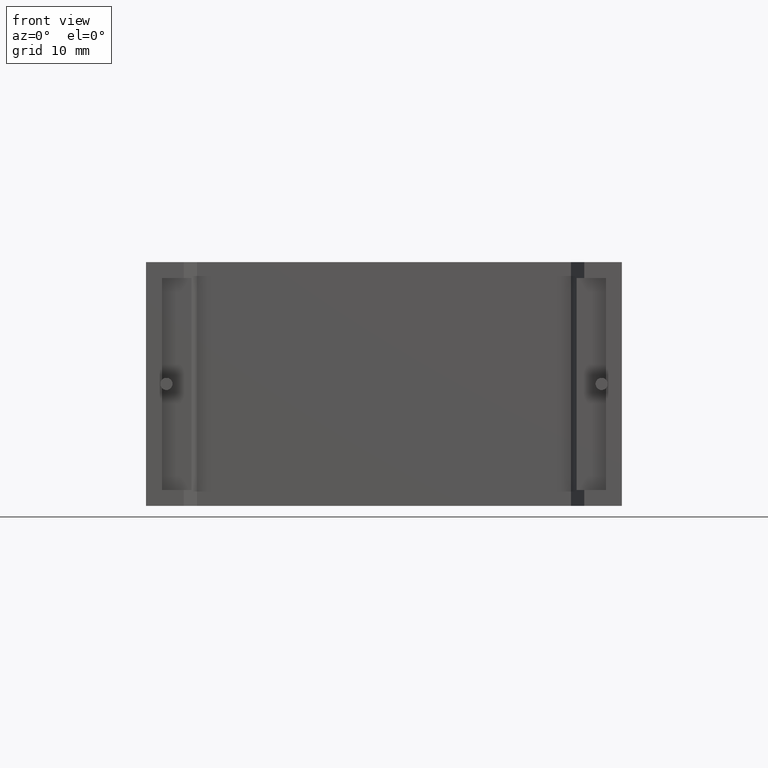
[diagram: clean part render]
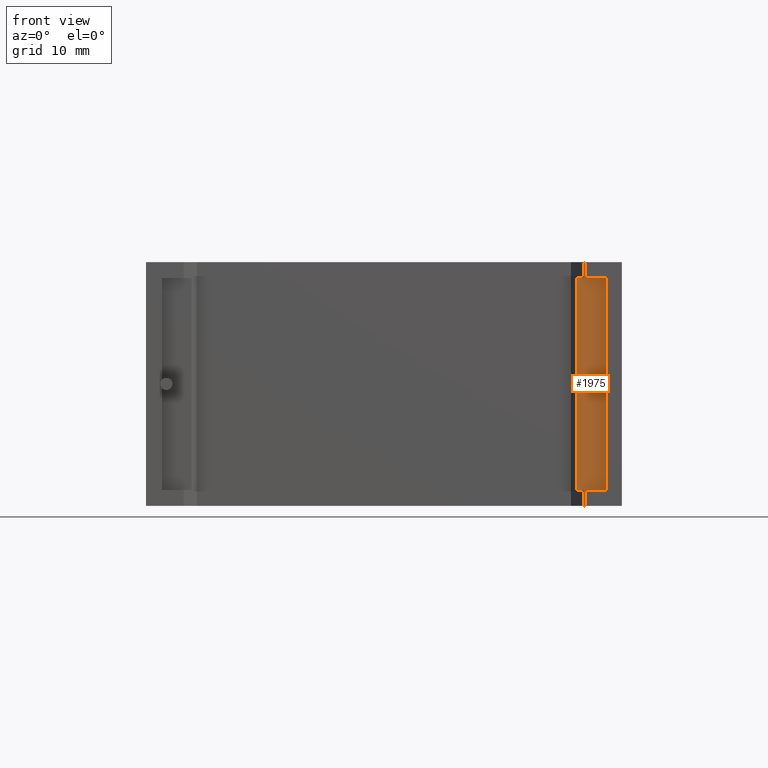
[diagram: same view with one face highlighted and labeled with its STEP entity id]
A machine part, front view. The second image highlights one B-rep face of the part: STEP entity #1975.
In plain terms, the highlighted planar face has unit normal (0, -1, 0).
Its self-contained STEP definition (entity closure, byte-faithful):
#18 = CARTESIAN_POINT ( 'NONE',  ( 39.63333347000000373, 0.7500000000000000000, 1.366666530000000046 ) ) ;
#99 = DIRECTION ( 'NONE',  ( 0.000000000000000000, 0.000000000000000000, -1.000000000000000000 ) ) ;
#122 = LINE ( 'NONE', #158, #2795 ) ;
#158 = CARTESIAN_POINT ( 'NONE',  ( 37.09826634814995572, 0.7500000000000000000, 0.000000000000000000 ) ) ;
#243 = DIRECTION ( 'NONE',  ( 0.000000000000000000, -0.000000000000000000, -1.000000000000000000 ) ) ;
#246 = AXIS2_PLACEMENT_3D ( 'NONE', #813, #2830, #1614 ) ;
#264 = ORIENTED_EDGE ( 'NONE', *, *, #2382, .T. ) ;
#298 = AXIS2_PLACEMENT_3D ( 'NONE', #2217, #1983, #243 ) ;
#533 = LINE ( 'NONE', #18, #2266 ) ;
#563 = CARTESIAN_POINT ( 'NONE',  ( 39.63333347000000373, 0.7500000000000000000, 1.366666530000000046 ) ) ;
#619 = VECTOR ( 'NONE', #2596, 1000.000000000000000 ) ;
#651 = CARTESIAN_POINT ( 'NONE',  ( 39.25000000000000000, 0.7500000000000000000, 10.50000000000000000 ) ) ;
#668 = DIRECTION ( 'NONE',  ( -0.000000000000000000, 1.000000000000000000, -0.000000000000000000 ) ) ;
#717 = ORIENTED_EDGE ( 'NONE', *, *, #3199, .T. ) ;
#813 = CARTESIAN_POINT ( 'NONE',  ( 39.25000000000000000, 0.7500000000000000000, 10.50000000000000000 ) ) ;
#819 = VERTEX_POINT ( 'NONE', #2663 ) ;
#850 = VERTEX_POINT ( 'NONE', #2762 ) ;
#928 = VERTEX_POINT ( 'NONE', #2098 ) ;
#1037 = CARTESIAN_POINT ( 'NONE',  ( 39.25000000000000000, 0.7500000000000000000, 10.50000000000000000 ) ) ;
#1094 = AXIS2_PLACEMENT_3D ( 'NONE', #1037, #2757, #2503 ) ;
#1101 = LINE ( 'NONE', #2035, #1345 ) ;
#1180 = EDGE_CURVE ( 'NONE', #1856, #1383, #1563, .T. ) ;
#1216 = ORIENTED_EDGE ( 'NONE', *, *, #2552, .T. ) ;
#1236 = VERTEX_POINT ( 'NONE', #2199 ) ;
#1276 = PLANE ( 'NONE',  #298 ) ;
#1285 = VECTOR ( 'NONE', #1838, 1000.000000000000000 ) ;
#1294 = CIRCLE ( 'NONE', #1666, 0.5249999999999994671 ) ;
#1345 = VECTOR ( 'NONE', #3053, 1000.000000000000000 ) ;
#1383 = VERTEX_POINT ( 'NONE', #1645 ) ;
#1563 = LINE ( 'NONE', #563, #1285 ) ;
#1614 = DIRECTION ( 'NONE',  ( 0.000000000000000000, 0.000000000000000000, -1.000000000000000000 ) ) ;
#1645 = CARTESIAN_POINT ( 'NONE',  ( 39.63333347000000373, 0.7500000000000000000, 19.63333347000000018 ) ) ;
#1666 = AXIS2_PLACEMENT_3D ( 'NONE', #651, #668, #99 ) ;
#1673 = CIRCLE ( 'NONE', #1094, 0.5249999999999994671 ) ;
#1760 = FACE_OUTER_BOUND ( 'NONE', #2084, .T. ) ;
#1838 = DIRECTION ( 'NONE',  ( 0.000000000000000000, 0.000000000000000000, 1.000000000000000000 ) ) ;
#1856 = VERTEX_POINT ( 'NONE', #3114 ) ;
#1927 = CARTESIAN_POINT ( 'NONE',  ( 37.09826634814995572, 0.7500000000000000000, 1.366666530000000046 ) ) ;
#1939 = VERTEX_POINT ( 'NONE', #1927 ) ;
#1975 = ADVANCED_FACE ( 'NONE', ( #1760 ), #1276, .T. ) ;
#1983 = DIRECTION ( 'NONE',  ( 0.000000000000000000, -1.000000000000000000, 0.000000000000000000 ) ) ;
#2031 = ORIENTED_EDGE ( 'NONE', *, *, #2089, .T. ) ;
#2035 = CARTESIAN_POINT ( 'NONE',  ( 1.366666530000000046, 0.7500000000000000000, 1.366666530000000046 ) ) ;
#2039 = ORIENTED_EDGE ( 'NONE', *, *, #2986, .T. ) ;
#2047 = CARTESIAN_POINT ( 'NONE',  ( 39.63333347000000373, 0.7500000000000000000, 1.366666530000000046 ) ) ;
#2084 = EDGE_LOOP ( 'NONE', ( #2366, #2031, #264, #2453, #717, #2395, #2039, #1216 ) ) ;
#2089 = EDGE_CURVE ( 'NONE', #928, #850, #2638, .T. ) ;
#2098 = CARTESIAN_POINT ( 'NONE',  ( 39.25000000000000000, 0.7500000000000000000, 9.975000000000001421 ) ) ;
#2188 = EDGE_CURVE ( 'NONE', #1236, #1939, #122, .T. ) ;
#2199 = CARTESIAN_POINT ( 'NONE',  ( 37.09826634814995572, 0.7500000000000000000, 19.63333347000000018 ) ) ;
#2217 = CARTESIAN_POINT ( 'NONE',  ( 0.000000000000000000, 0.7500000000000000000, 0.000000000000000000 ) ) ;
#2266 = VECTOR ( 'NONE', #2741, 1000.000000000000000 ) ;
#2366 = ORIENTED_EDGE ( 'NONE', *, *, #3123, .T. ) ;
#2375 = LINE ( 'NONE', #2859, #619 ) ;
#2382 = EDGE_CURVE ( 'NONE', #850, #1856, #1673, .T. ) ;
#2395 = ORIENTED_EDGE ( 'NONE', *, *, #2188, .T. ) ;
#2453 = ORIENTED_EDGE ( 'NONE', *, *, #1180, .T. ) ;
#2503 = DIRECTION ( 'NONE',  ( 0.000000000000000000, 0.000000000000000000, -1.000000000000000000 ) ) ;
#2552 = EDGE_CURVE ( 'NONE', #2649, #819, #533, .T. ) ;
#2596 = DIRECTION ( 'NONE',  ( -1.000000000000000000, 0.000000000000000000, -9.066498938602395347E-17 ) ) ;
#2612 = DIRECTION ( 'NONE',  ( 0.000000000000000000, 0.000000000000000000, -1.000000000000000000 ) ) ;
#2638 = CIRCLE ( 'NONE', #246, 0.5249999999999994671 ) ;
#2649 = VERTEX_POINT ( 'NONE', #2047 ) ;
#2663 = CARTESIAN_POINT ( 'NONE',  ( 39.63333347000000373, 0.7500000000000000000, 10.14127942520987702 ) ) ;
#2741 = DIRECTION ( 'NONE',  ( 0.000000000000000000, 0.000000000000000000, 1.000000000000000000 ) ) ;
#2757 = DIRECTION ( 'NONE',  ( -0.000000000000000000, 1.000000000000000000, -0.000000000000000000 ) ) ;
#2762 = CARTESIAN_POINT ( 'NONE',  ( 39.25000000000000000, 0.7500000000000000000, 11.02500000000000036 ) ) ;
#2795 = VECTOR ( 'NONE', #2612, 1000.000000000000000 ) ;
#2830 = DIRECTION ( 'NONE',  ( -0.000000000000000000, 1.000000000000000000, -0.000000000000000000 ) ) ;
#2859 = CARTESIAN_POINT ( 'NONE',  ( 39.63333347000000373, 0.7500000000000000000, 19.63333347000000018 ) ) ;
#2986 = EDGE_CURVE ( 'NONE', #1939, #2649, #1101, .T. ) ;
#3053 = DIRECTION ( 'NONE',  ( 1.000000000000000000, 0.000000000000000000, 0.000000000000000000 ) ) ;
#3114 = CARTESIAN_POINT ( 'NONE',  ( 39.63333347000000373, 0.7500000000000000000, 10.85872057479012476 ) ) ;
#3123 = EDGE_CURVE ( 'NONE', #819, #928, #1294, .T. ) ;
#3199 = EDGE_CURVE ( 'NONE', #1383, #1236, #2375, .T. ) ;